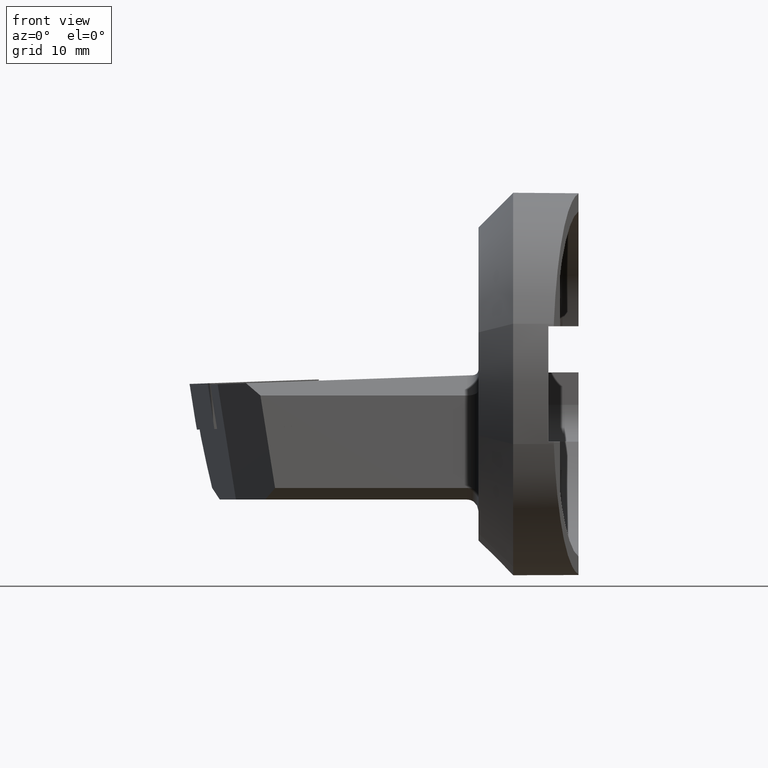
[diagram: clean part render]
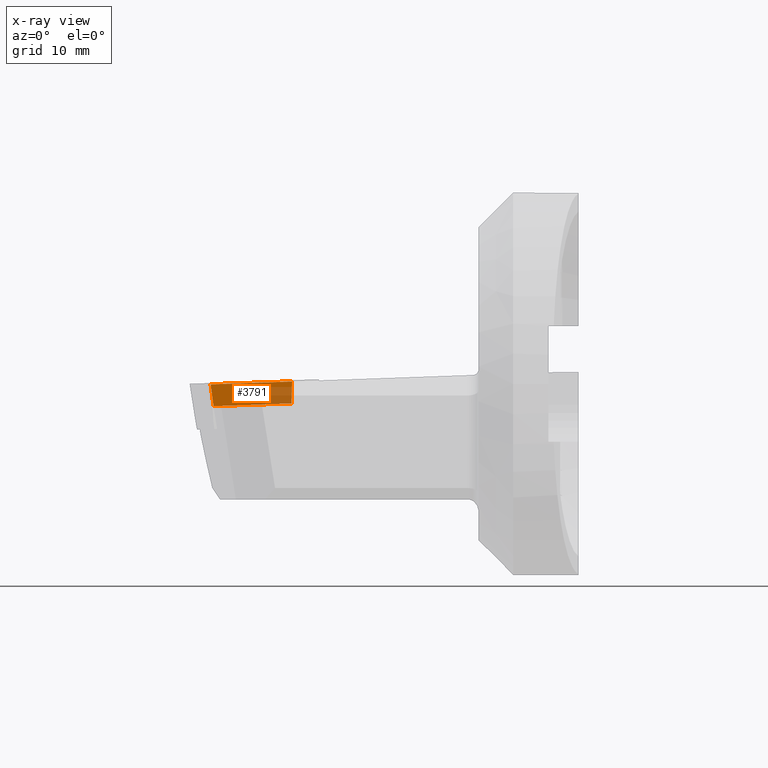
[diagram: x-ray — body ghosted, one internal face saturated and labeled with its STEP entity id]
A machine part, front view, then the same camera in x-ray: the body is ghosted and one INTERNAL B-rep face — a face not visible from any outside direction — is saturated and labeled: STEP entity #3791.
In plain terms, the highlighted planar face has unit normal (0.0043, -0.9925, -0.1218).
Its self-contained STEP definition (entity closure, byte-faithful):
#80 = PLANE ( 'NONE',  #2771 ) ;
#140 = VERTEX_POINT ( 'NONE', #2228 ) ;
#191 = VERTEX_POINT ( 'NONE', #1884 ) ;
#239 = ORIENTED_EDGE ( 'NONE', *, *, #3427, .F. ) ;
#314 = CARTESIAN_POINT ( 'NONE',  ( -30.37836434279056500, 17.22056912180579900, -1.942844285138039000 ) ) ;
#439 = CARTESIAN_POINT ( 'NONE',  ( -30.44816333619557400, 16.97499999999999100, 0.05593736890015189900 ) ) ;
#548 = CARTESIAN_POINT ( 'NONE',  ( -23.21825440332036200, 17.22056912180580600, -1.692807736406202600 ) ) ;
#728 = VECTOR ( 'NONE', #4188, 1000.000000000000200 ) ;
#779 = VERTEX_POINT ( 'NONE', #548 ) ;
#795 = DIRECTION ( 'NONE',  ( 0.004253178748304697500, -0.9925461516413219800, -0.1217951038939447100 ) ) ;
#958 = ORIENTED_EDGE ( 'NONE', *, *, #2821, .T. ) ;
#1166 = LINE ( 'NONE', #314, #2724 ) ;
#1185 = EDGE_CURVE ( 'NONE', #140, #3047, #1724, .T. ) ;
#1366 = CARTESIAN_POINT ( 'NONE',  ( -32.04651005032977200, 16.98727845609028000, -0.09993908270191019500 ) ) ;
#1524 = ORIENTED_EDGE ( 'NONE', *, *, #2604, .T. ) ;
#1558 = CARTESIAN_POINT ( 'NONE',  ( -23.21825440332036200, 17.22056912180580600, -1.692807736406202600 ) ) ;
#1724 = LINE ( 'NONE', #1366, #728 ) ;
#1726 =( BOUNDED_CURVE ( )  B_SPLINE_CURVE ( 3, ( #1950, #2283, #2993, #1558 ),
 .UNSPECIFIED., .F., .T. ) 
 B_SPLINE_CURVE_WITH_KNOTS ( ( 4, 4 ),
 ( 1.073095002201174500, 1.228109701522593500 ),
 .UNSPECIFIED. ) 
 CURVE ( )  GEOMETRIC_REPRESENTATION_ITEM ( )  RATIONAL_B_SPLINE_CURVE ( ( 1.000000000000000000, 0.9979985391800729700, 0.9979985391800729700, 1.000000000000000000 ) ) 
 REPRESENTATION_ITEM ( '' )  );
#1884 = CARTESIAN_POINT ( 'NONE',  ( -29.97177887913051800, 17.22056912180579900, -1.928646007882870200 ) ) ;
#1931 = LINE ( 'NONE', #2928, #4567 ) ;
#1950 = CARTESIAN_POINT ( 'NONE',  ( -23.18039145606096700, 16.98727845609028400, 0.2096726010150807800 ) ) ;
#2228 = CARTESIAN_POINT ( 'NONE',  ( -23.18039145606096700, 16.98727845609028400, 0.2096726010150807800 ) ) ;
#2283 = CARTESIAN_POINT ( 'NONE',  ( -23.19979560723933400, 17.06226832958807900, -0.4021207904549881600 ) ) ;
#2497 = DIRECTION ( 'NONE',  ( -0.1342838594297164100, -0.1212599522912693500, 0.9834957392215683000 ) ) ;
#2604 = EDGE_CURVE ( 'NONE', #140, #779, #1726, .T. ) ;
#2724 = VECTOR ( 'NONE', #2804, 1000.000000000000200 ) ;
#2771 = AXIS2_PLACEMENT_3D ( 'NONE', #439, #795, #2886 ) ;
#2804 = DIRECTION ( 'NONE',  ( 0.9993908270190955400, 3.582954577679176300E-016, 0.03489949670250451500 ) ) ;
#2821 = EDGE_CURVE ( 'NONE', #191, #3047, #1931, .T. ) ;
#2886 = DIRECTION ( 'NONE',  ( 0.0000000000000000000, 0.1217962055169509200, -0.9925551291095485700 ) ) ;
#2928 = CARTESIAN_POINT ( 'NONE',  ( -30.24646695264095100, 16.97252246280811500, 0.08317098233323497200 ) ) ;
#2993 = CARTESIAN_POINT ( 'NONE',  ( -23.21244190072004800, 17.14018783766911700, -1.037552694989403800 ) ) ;
#3047 = VERTEX_POINT ( 'NONE', #4403 ) ;
#3427 = EDGE_CURVE ( 'NONE', #191, #779, #1166, .T. ) ;
#3581 = FACE_OUTER_BOUND ( 'NONE', #3671, .T. ) ;
#3671 = EDGE_LOOP ( 'NONE', ( #239, #958, #4048, #1524 ) ) ;
#3791 = ADVANCED_FACE ( 'NONE', ( #3581 ), #80, .F. ) ;
#4048 = ORIENTED_EDGE ( 'NONE', *, *, #1185, .F. ) ;
#4188 = DIRECTION ( 'NONE',  ( -0.9993908270190955400, -3.530456911931533800E-016, -0.03489949670250455700 ) ) ;
#4403 = CARTESIAN_POINT ( 'NONE',  ( -30.23012609409526500, 16.98727845609028000, -0.03650955725771104500 ) ) ;
#4567 = VECTOR ( 'NONE', #2497, 1000.000000000000200 ) ;